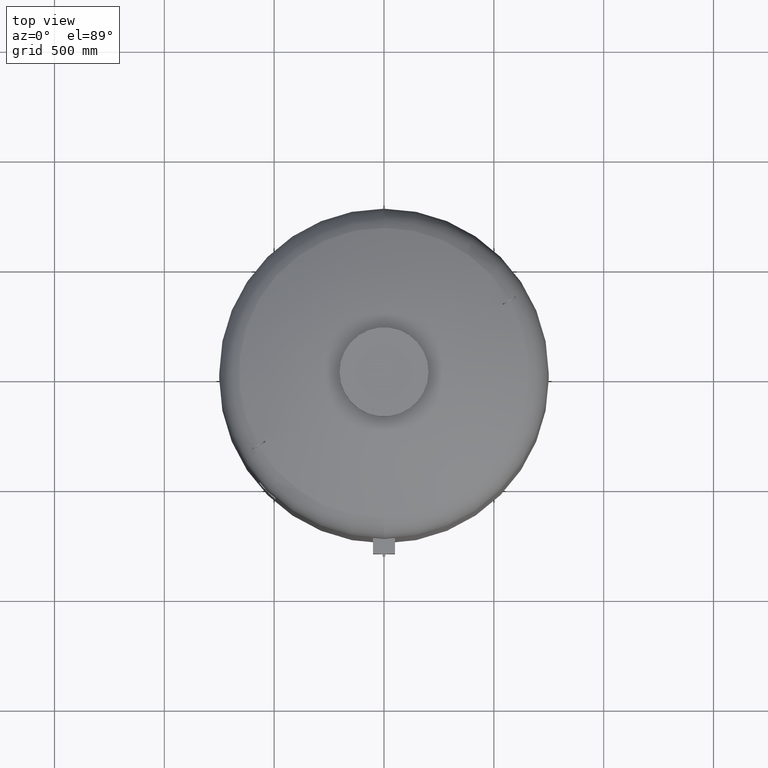
[diagram: clean part render]
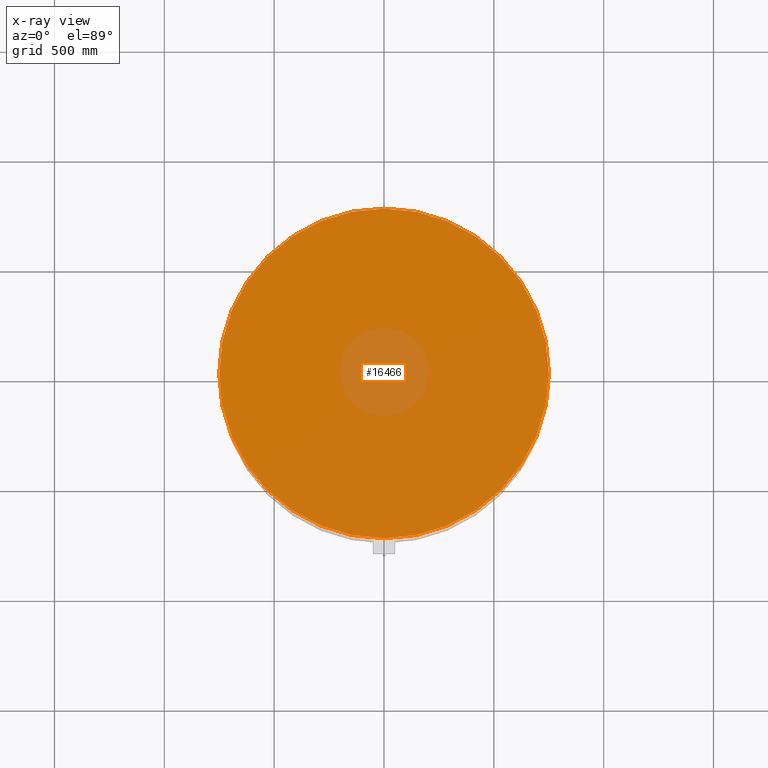
[diagram: x-ray — body ghosted, one internal face saturated and labeled with its STEP entity id]
A machine part, top view, then the same camera in x-ray: the body is ghosted and one INTERNAL B-rep face — a face not visible from any outside direction — is saturated and labeled: STEP entity #16466.
In plain terms, the highlighted planar face has unit normal (0, 0, -1).
Its self-contained STEP definition (entity closure, byte-faithful):
#15725=CARTESIAN_POINT('',(750.0,-6.062002E-014,2096.0));
#15726=VERTEX_POINT('',#15725);
#15735=CARTESIAN_POINT('',(-750.0,3.122546E-014,2096.0));
#15736=VERTEX_POINT('',#15735);
#15737=CARTESIAN_POINT('',(1.631890E-014,-6.062002E-014,2096.0));
#15738=DIRECTION('',(0.0,0.0,-1.0));
#15739=DIRECTION('',(1.0,0.0,0.0));
#15740=AXIS2_PLACEMENT_3D('',#15737,#15738,#15739);
#15741=CIRCLE('',#15740,750.0);
#15742=EDGE_CURVE('',#15736,#15726,#15741,.T.);
#16447=CARTESIAN_POINT('',(1.631890E-014,-6.062002E-014,2096.0));
#16448=DIRECTION('',(0.0,0.0,-1.0));
#16449=DIRECTION('',(1.0,0.0,0.0));
#16450=AXIS2_PLACEMENT_3D('',#16447,#16448,#16449);
#16451=CIRCLE('',#16450,750.0);
#16452=EDGE_CURVE('',#15726,#15736,#16451,.T.);
#16457=CARTESIAN_POINT('',(374.999999999999940,-6.062002E-014,2096.0));
#16458=DIRECTION('',(0.0,0.0,-1.0));
#16459=DIRECTION('',(0.0,-1.0,0.0));
#16460=AXIS2_PLACEMENT_3D('',#16457,#16458,#16459);
#16461=PLANE('',#16460);
#16462=ORIENTED_EDGE('',*,*,#16452,.T.);
#16463=ORIENTED_EDGE('',*,*,#15742,.T.);
#16464=EDGE_LOOP('',(#16462,#16463));
#16465=FACE_OUTER_BOUND('',#16464,.T.);
#16466=ADVANCED_FACE('',(#16465),#16461,.T.);